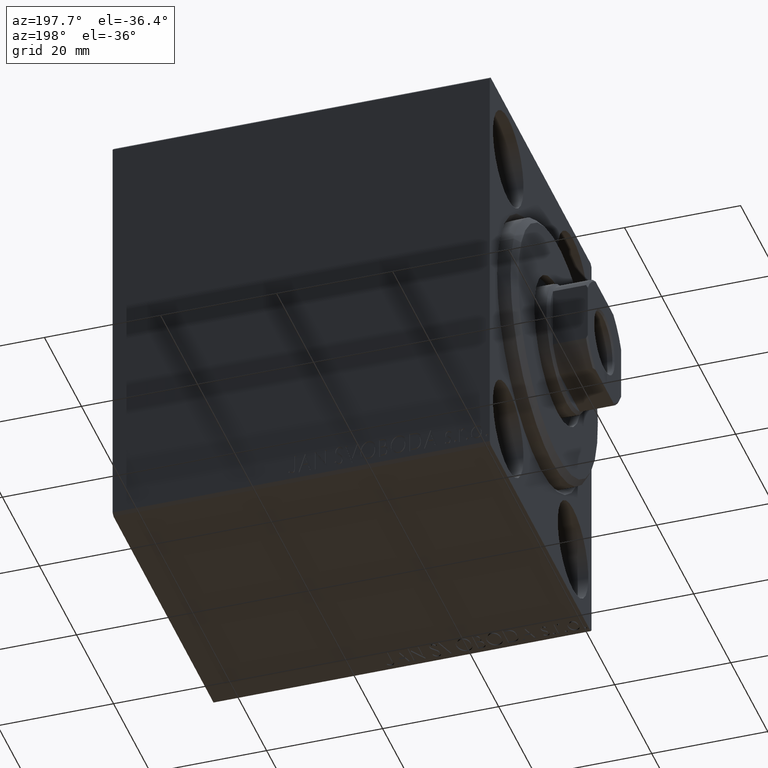
[diagram: clean part render]
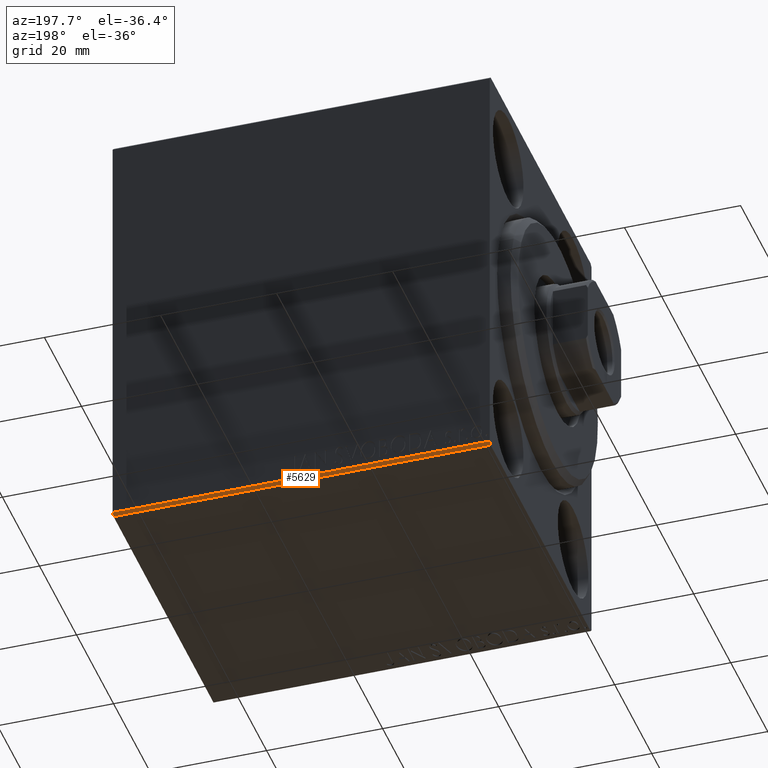
[diagram: same view with one face highlighted and labeled with its STEP entity id]
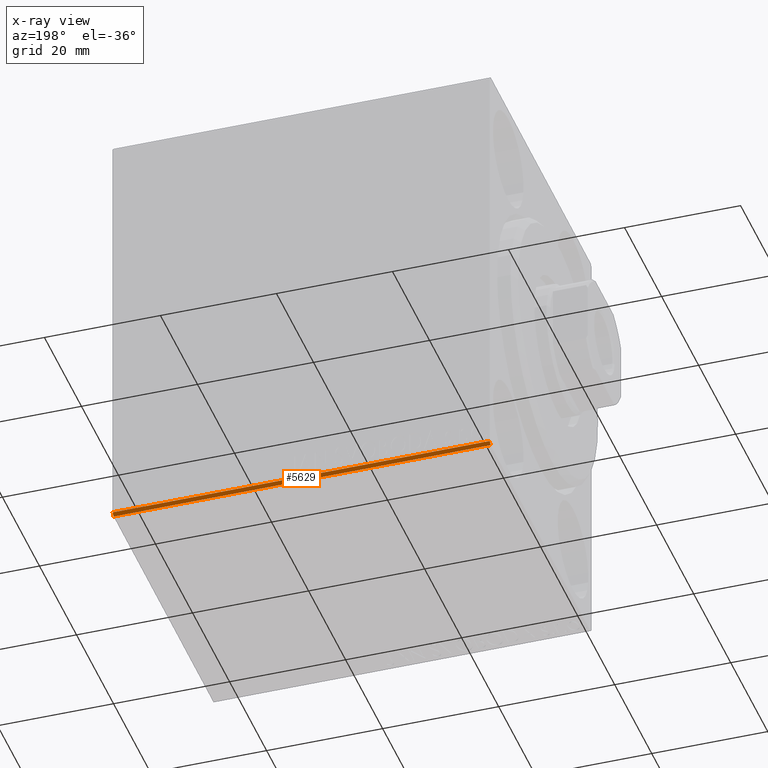
[diagram: x-ray of the same camera — body ghosted, the highlighted face saturated]
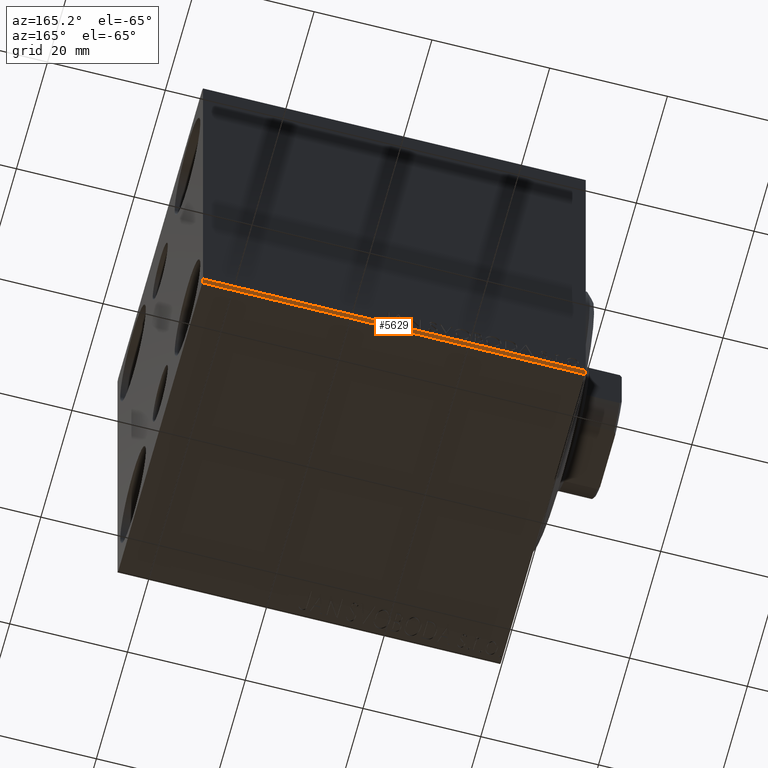
[diagram: same view with one face highlighted and labeled with its STEP entity id]
A machine part, auxiliary view. The second image highlights one B-rep face of the part: STEP entity #5629.
The next image is the same camera in x-ray: the body ghosted, the highlighted face saturated — about 0% of this face is hidden behind the body in this view.
A second angle (auxiliary view) of the same face is appended — the face is thin or edge-on in the first view.
In plain terms, the highlighted planar face has unit normal (0, -0.7071, 0.7071).
Its self-contained STEP definition (entity closure, byte-faithful):
#2093 = LINE ( 'NONE', #38248, #27777 ) ;
#3206 = CARTESIAN_POINT ( 'NONE',  ( 0.000000000000000000, 27.00000000000000355, -37.50000000000000000 ) ) ;
#3229 = EDGE_LOOP ( 'NONE', ( #35078, #23924, #6515, #21365 ) ) ;
#3236 = PLANE ( 'NONE',  #7530 ) ;
#4387 = CARTESIAN_POINT ( 'NONE',  ( 65.00000000000000000, 27.00000000000000355, -37.50000000000000000 ) ) ;
#4740 = DIRECTION ( 'NONE',  ( -1.000000000000000000, 0.000000000000000000, 0.000000000000000000 ) ) ;
#5629 = ADVANCED_FACE ( 'NONE', ( #9861 ), #3236, .F. ) ;
#6515 = ORIENTED_EDGE ( 'NONE', *, *, #15543, .F. ) ;
#7530 = AXIS2_PLACEMENT_3D ( 'NONE', #13172, #10088, #9416 ) ;
#8926 = DIRECTION ( 'NONE',  ( -0.000000000000000000, 0.7071067811865474617, 0.7071067811865474617 ) ) ;
#9407 = VERTEX_POINT ( 'NONE', #10648 ) ;
#9416 = DIRECTION ( 'NONE',  ( -1.000000000000000000, 0.000000000000000000, 0.000000000000000000 ) ) ;
#9623 = LINE ( 'NONE', #19776, #26701 ) ;
#9861 = FACE_OUTER_BOUND ( 'NONE', #3229, .T. ) ;
#10088 = DIRECTION ( 'NONE',  ( 0.000000000000000000, -0.7071067811865475727, 0.7071067811865475727 ) ) ;
#10648 = CARTESIAN_POINT ( 'NONE',  ( 0.000000000000000000, 27.50000000000000355, -37.00000000000000000 ) ) ;
#11855 = EDGE_CURVE ( 'NONE', #14795, #15932, #15991, .T. ) ;
#13172 = CARTESIAN_POINT ( 'NONE',  ( 65.00000000000000000, 27.50000000000000355, -37.00000000000000000 ) ) ;
#14795 = VERTEX_POINT ( 'NONE', #4387 ) ;
#15477 = LINE ( 'NONE', #15911, #28762 ) ;
#15543 = EDGE_CURVE ( 'NONE', #9407, #42376, #15477, .T. ) ;
#15911 = CARTESIAN_POINT ( 'NONE',  ( 0.000000000000000000, 27.50000000000000355, -37.00000000000000000 ) ) ;
#15932 = VERTEX_POINT ( 'NONE', #35255 ) ;
#15991 = LINE ( 'NONE', #32944, #23872 ) ;
#16456 = EDGE_CURVE ( 'NONE', #42376, #14795, #9623, .T. ) ;
#19776 = CARTESIAN_POINT ( 'NONE',  ( 65.00000000000000000, 27.00000000000000355, -37.50000000000000000 ) ) ;
#21365 = ORIENTED_EDGE ( 'NONE', *, *, #27962, .F. ) ;
#23872 = VECTOR ( 'NONE', #8926, 1000.000000000000114 ) ;
#23924 = ORIENTED_EDGE ( 'NONE', *, *, #16456, .F. ) ;
#26701 = VECTOR ( 'NONE', #36285, 1000.000000000000000 ) ;
#27777 = VECTOR ( 'NONE', #4740, 1000.000000000000000 ) ;
#27962 = EDGE_CURVE ( 'NONE', #15932, #9407, #2093, .T. ) ;
#28762 = VECTOR ( 'NONE', #29565, 1000.000000000000114 ) ;
#29565 = DIRECTION ( 'NONE',  ( 0.000000000000000000, -0.7071067811865474617, -0.7071067811865474617 ) ) ;
#32944 = CARTESIAN_POINT ( 'NONE',  ( 65.00000000000000000, 32.25000000000000000, -32.25000000000000000 ) ) ;
#35078 = ORIENTED_EDGE ( 'NONE', *, *, #11855, .F. ) ;
#35255 = CARTESIAN_POINT ( 'NONE',  ( 65.00000000000000000, 27.50000000000000355, -37.00000000000000000 ) ) ;
#36285 = DIRECTION ( 'NONE',  ( 1.000000000000000000, 0.000000000000000000, 0.000000000000000000 ) ) ;
#38248 = CARTESIAN_POINT ( 'NONE',  ( 65.00000000000000000, 27.50000000000000355, -37.00000000000000000 ) ) ;
#42376 = VERTEX_POINT ( 'NONE', #3206 ) ;